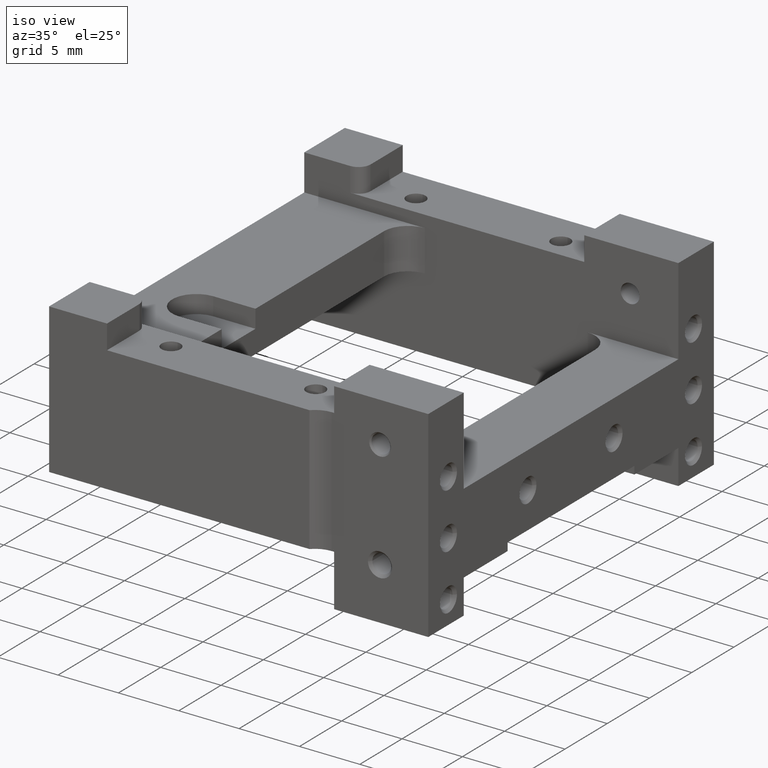
[diagram: clean part render]
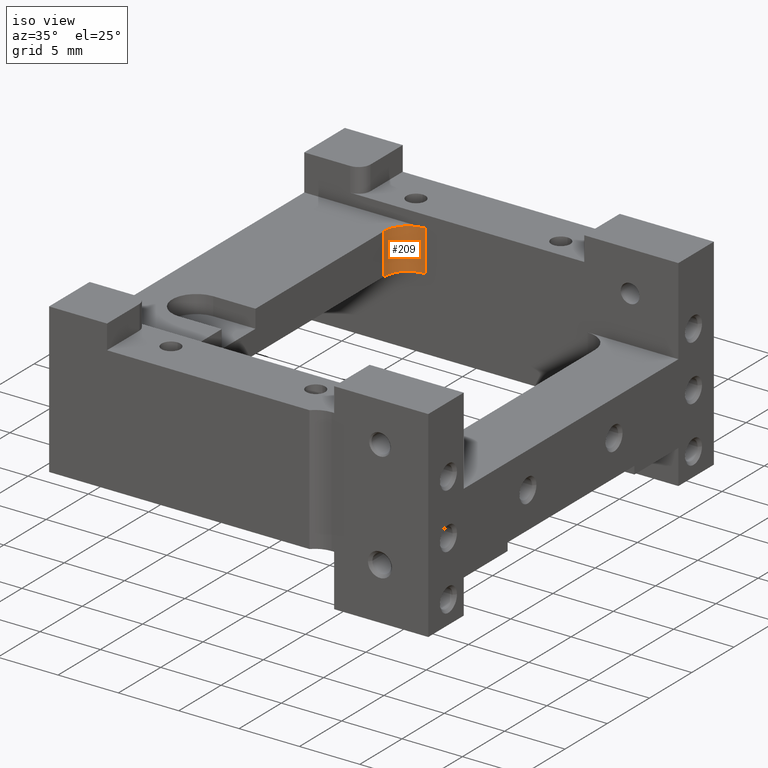
[diagram: same view with one face highlighted and labeled with its STEP entity id]
A machine part, iso view. The second image highlights one B-rep face of the part: STEP entity #209.
In plain terms, the highlighted cylindrical surface (edge-blend (fillet) strip) has radius 2 mm, axis along (0, 0, 1).
Its self-contained STEP definition (entity closure, byte-faithful):
#68=CYLINDRICAL_SURFACE('',#3547,2.);
#209=ADVANCED_FACE('',(#403),#68,.F.);
#403=FACE_OUTER_BOUND('',#611,.F.);
#611=EDGE_LOOP('',(#1070,#1071,#1072,#1073));
#1070=ORIENTED_EDGE('',*,*,#2531,.F.);
#1071=ORIENTED_EDGE('',*,*,#2536,.T.);
#1072=ORIENTED_EDGE('',*,*,#2533,.T.);
#1073=ORIENTED_EDGE('',*,*,#2537,.T.);
#1930=LINE('',#5236,#2200);
#1932=LINE('',#5238,#2202);
#2200=VECTOR('',#3959,3.39999999999951);
#2202=VECTOR('',#3961,3.39999999999951);
#2531=EDGE_CURVE('',#3199,#3195,#1930,.T.);
#2533=EDGE_CURVE('',#3157,#3174,#1932,.T.);
#2536=EDGE_CURVE('',#3199,#3157,#2862,.T.);
#2537=EDGE_CURVE('',#3174,#3195,#2863,.T.);
#2862=CIRCLE('',#3371,2.);
#2863=CIRCLE('',#3372,2.);
#3157=VERTEX_POINT('',#4918);
#3174=VERTEX_POINT('',#4935);
#3195=VERTEX_POINT('',#4956);
#3199=VERTEX_POINT('',#4960);
#3371=AXIS2_PLACEMENT_3D('',#5241,#3966,#3967);
#3372=AXIS2_PLACEMENT_3D('',#5242,#3968,#3969);
#3547=AXIS2_PLACEMENT_3D('',#5549,#4450,#4451);
#3959=DIRECTION('',(0.,0.,1.));
#3961=DIRECTION('',(0.,0.,1.));
#3966=DIRECTION('',(0.,0.,1.));
#3967=DIRECTION('',(0.,1.,0.));
#3968=DIRECTION('',(0.,0.,-1.));
#3969=DIRECTION('',(-1.,0.,0.));
#4450=DIRECTION('',(0.,0.,1.));
#4451=DIRECTION('',(0.,1.,0.));
#4918=CARTESIAN_POINT('',(-24.9999998636461,-49.2999999110648,-99.4000000000003));
#4935=CARTESIAN_POINT('',(-24.9999998636461,-49.2999999110648,-96.0000000000008));
#4956=CARTESIAN_POINT('',(-22.9999998636461,-47.2999999555324,-96.0000000000008));
#4960=CARTESIAN_POINT('',(-22.9999998636461,-47.2999999555324,-99.4000000000003));
#5236=CARTESIAN_POINT('',(-22.9999998636461,-47.2999999110648,-99.4000000000003));
#5238=CARTESIAN_POINT('',(-24.9999998636461,-49.2999999110648,-99.4000000000003));
#5241=CARTESIAN_POINT('',(-22.9999998636461,-49.2999999110647,-99.4000000000003));
#5242=CARTESIAN_POINT('',(-22.9999998636461,-49.2999999110648,-96.0000000000008));
#5549=CARTESIAN_POINT('',(-22.9999998636461,-49.2999999110647,-122.92500003676));